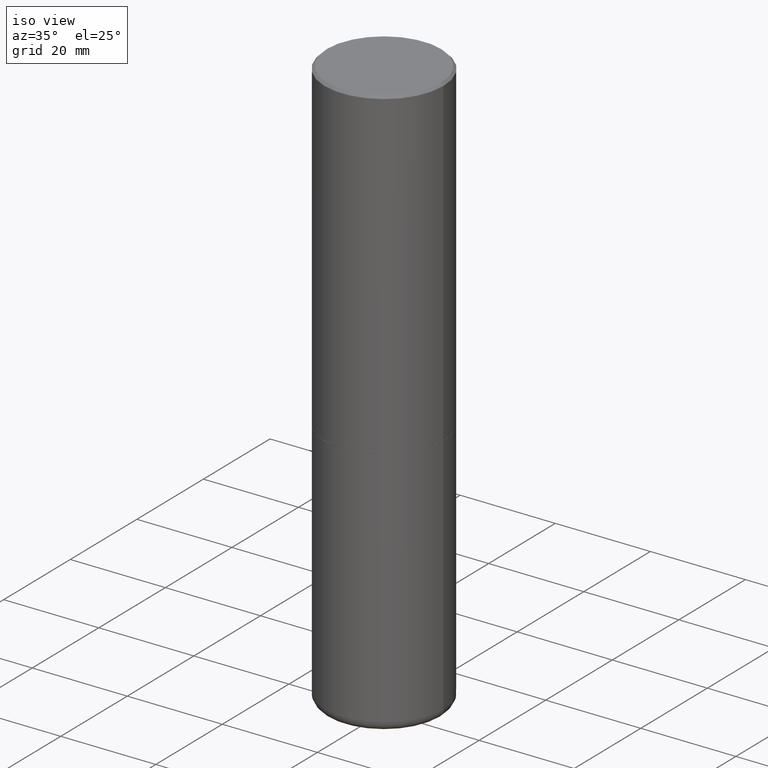
[diagram: clean part render]
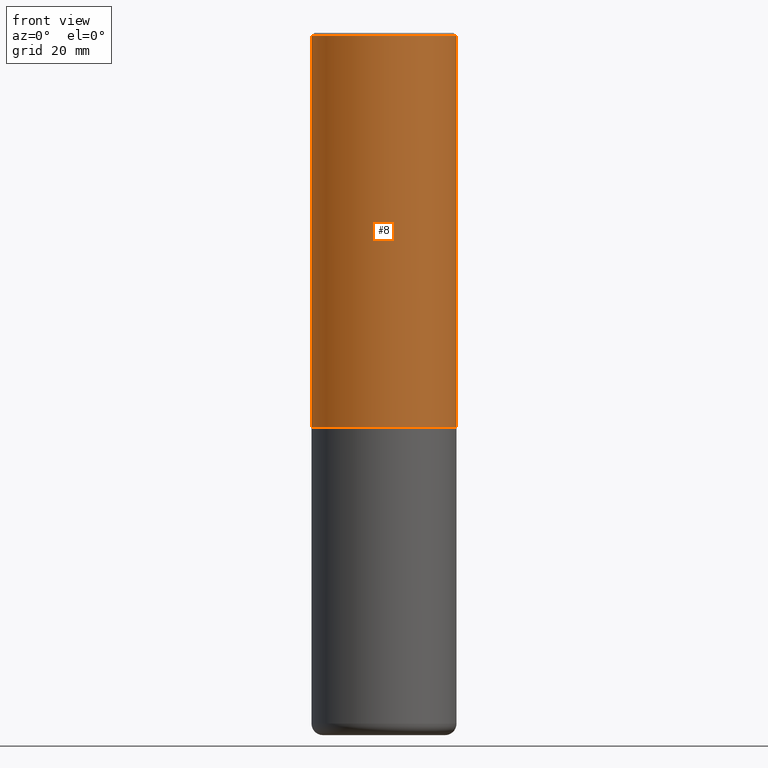
[diagram: tour spotlight — one face highlighted and labeled with its STEP entity id]
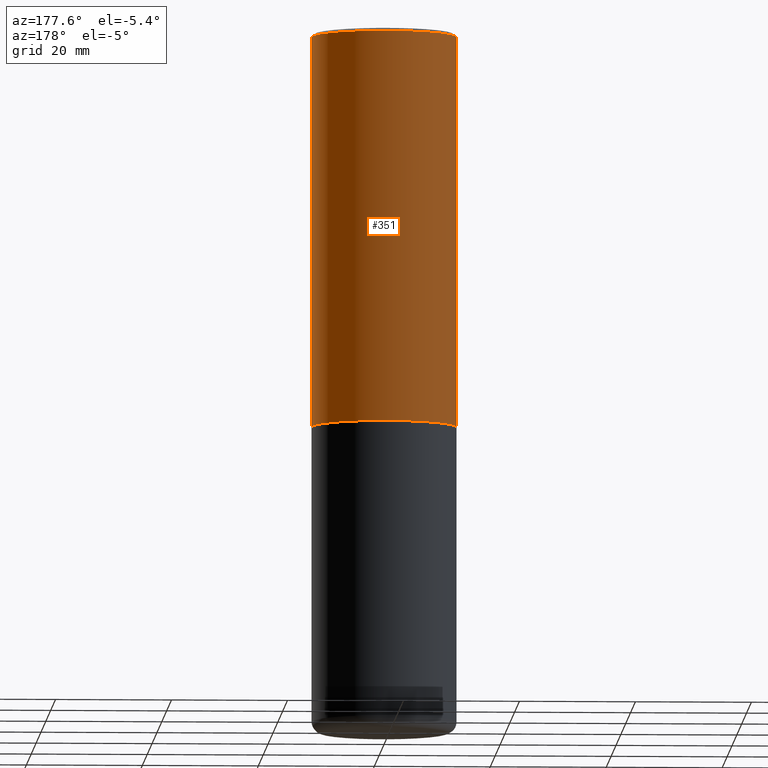
[diagram: tour spotlight — one face highlighted and labeled with its STEP entity id]
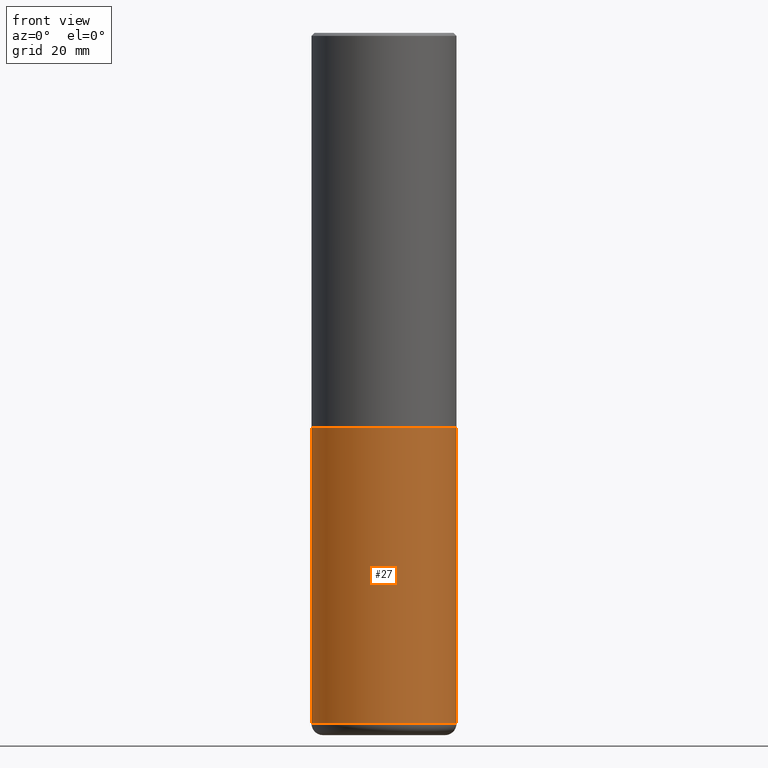
[diagram: tour spotlight — one face highlighted and labeled with its STEP entity id]
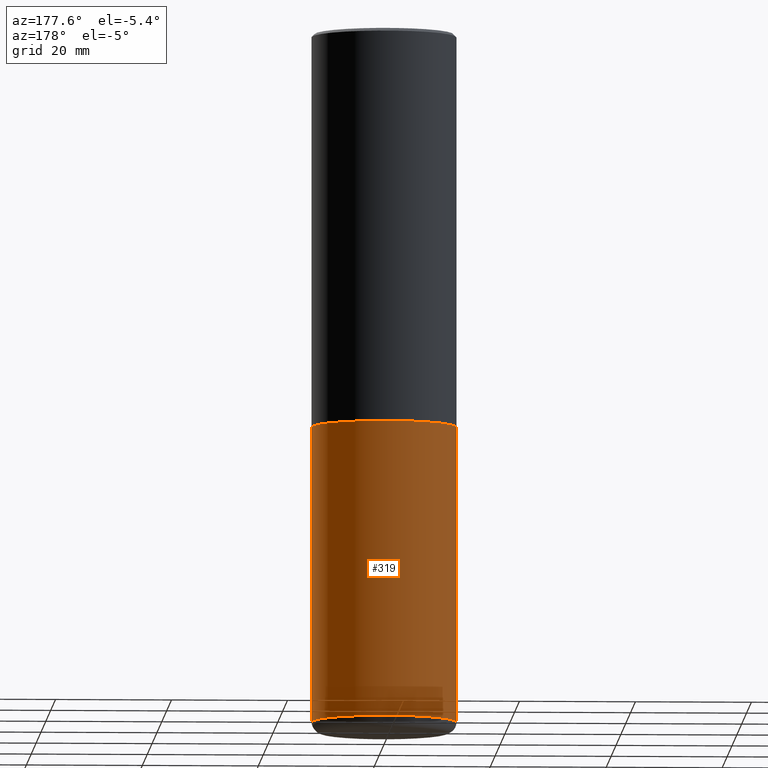
[diagram: tour spotlight — one face highlighted and labeled with its STEP entity id]
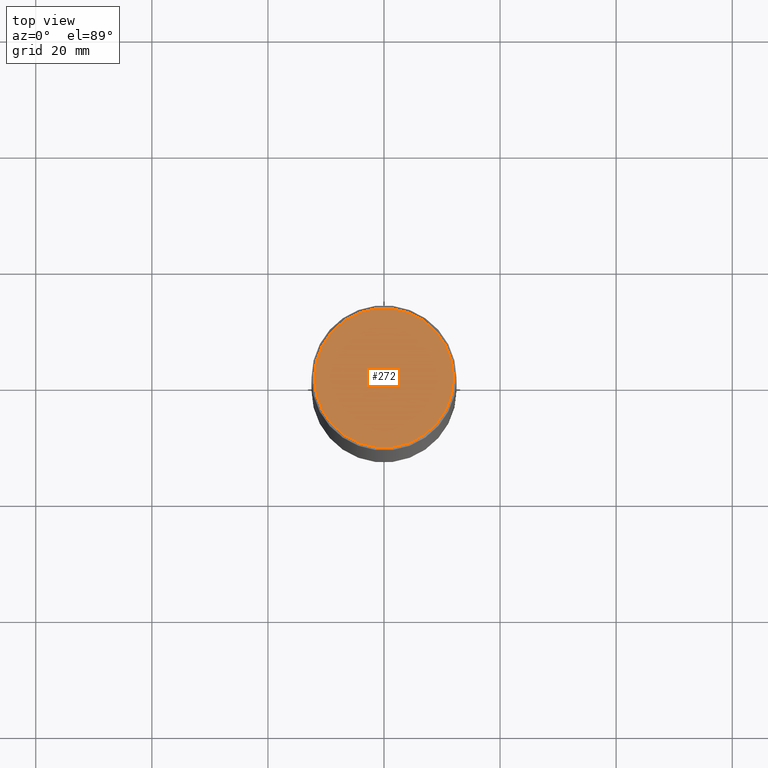
[diagram: tour spotlight — one face highlighted and labeled with its STEP entity id]
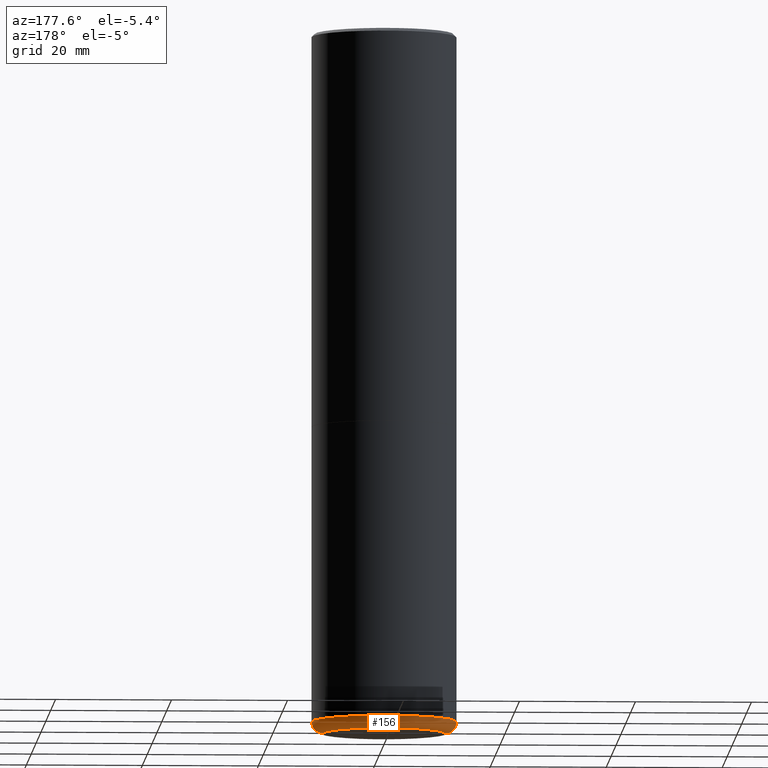
[diagram: tour spotlight — one face highlighted and labeled with its STEP entity id]
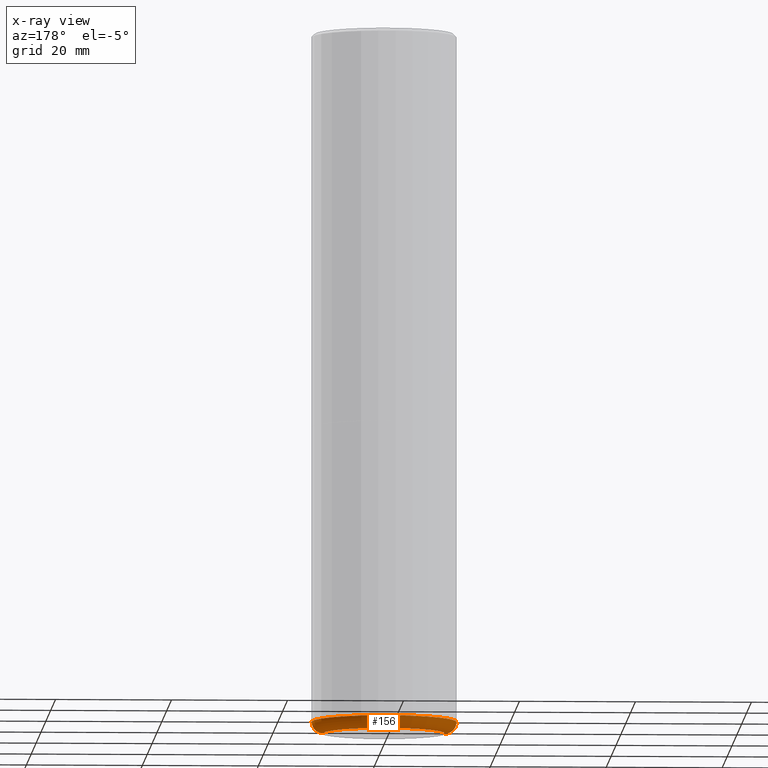
[diagram: x-ray of the same camera — body ghosted, this tour face saturated]
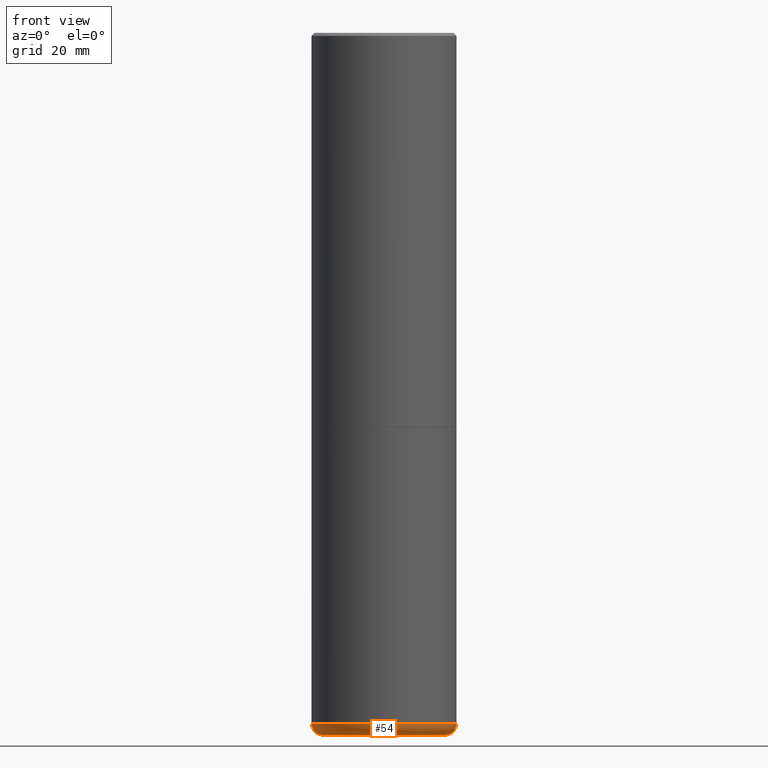
[diagram: tour spotlight — one face highlighted and labeled with its STEP entity id]
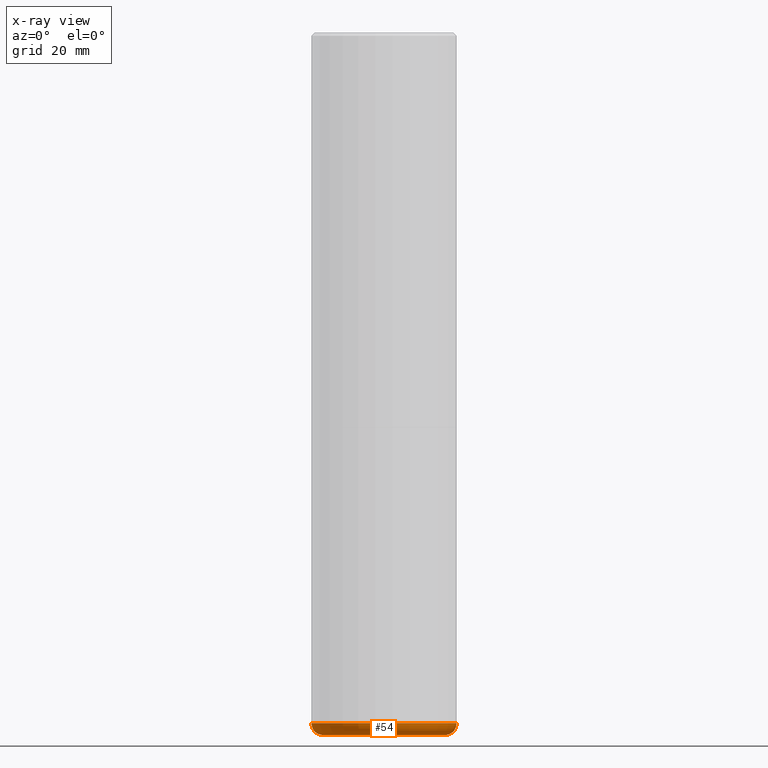
[diagram: x-ray of the same camera — body ghosted, this tour face saturated]
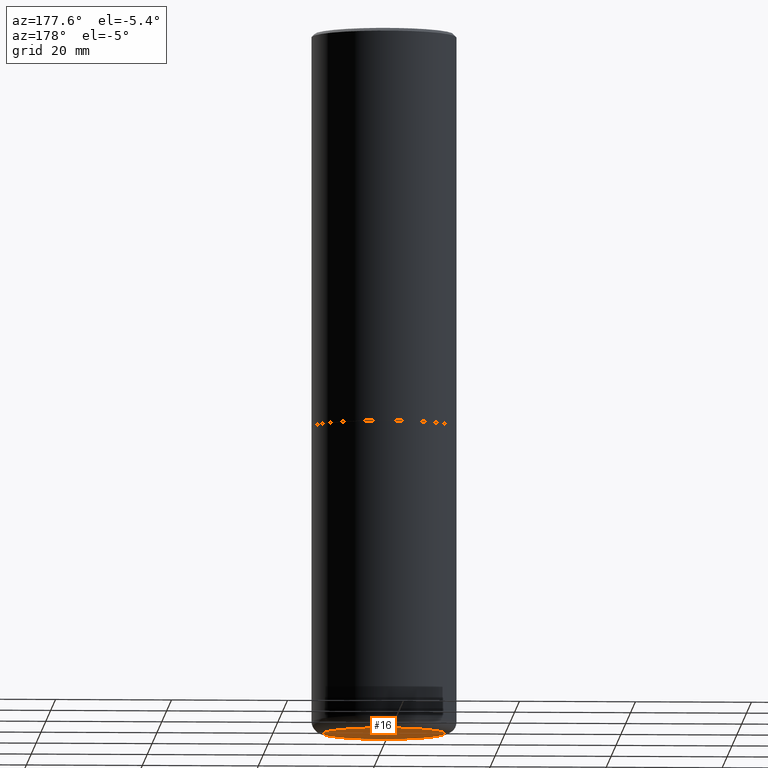
[diagram: tour spotlight — one face highlighted and labeled with its STEP entity id]
A machine part: a face-by-face anatomy tour. The part has 14 B-rep faces; the first image is the clean iso view, then the 8 largest visible faces are spotlighted one at a time (largest first), each with its STEP entity span.

Face 1 — front view, entity #8. In plain terms, the highlighted cylindrical surface (partial cylindrical patch) has radius 12.5006 mm, axis along (-0, 0, 1).
Definition (entity closure, byte-faithful):
#8 = ADVANCED_FACE ( 'NONE', ( #85 ), #271, .T. ) ;
#17 = CIRCLE ( 'NONE', #191, 0.4921499999999999764 ) ;
#40 = CARTESIAN_POINT ( 'NONE',  ( 0.4921500000000000874, -3.436665081823296565E-15, 2.399810400207970163E-29 ) ) ;
#41 = ORIENTED_EDGE ( 'NONE', *, *, #299, .T. ) ;
#72 = DIRECTION ( 'NONE',  ( 1.000000000000000000, -6.982962677686265922E-15, 0.000000000000000000 ) ) ;
#78 = DIRECTION ( 'NONE',  ( -2.445468806185136877E-29, 3.491481338843145188E-15, 1.000000000000000000 ) ) ;
#84 = VECTOR ( 'NONE', #134, 39.37007874015748143 ) ;
#85 = FACE_OUTER_BOUND ( 'NONE', #295, .T. ) ;
#103 = VERTEX_POINT ( 'NONE', #159 ) ;
#112 = AXIS2_PLACEMENT_3D ( 'NONE', #279, #416, #247 ) ;
#127 = DIRECTION ( 'NONE',  ( -2.445468806185136597E-29, 3.491481338843145583E-15, 1.000000000000000000 ) ) ;
#129 = CARTESIAN_POINT ( 'NONE',  ( 4.890937612370299433E-31, -6.982962677686328587E-17, -0.02000000000000010797 ) ) ;
#134 = DIRECTION ( 'NONE',  ( -2.445468806185136877E-29, 3.491481338843145188E-15, 1.000000000000000000 ) ) ;
#139 = CARTESIAN_POINT ( 'NONE',  ( 0.4921499999999999764, -3.446223716380122349E-15, -0.02000000000000010797 ) ) ;
#142 = VERTEX_POINT ( 'NONE', #285 ) ;
#145 = ORIENTED_EDGE ( 'NONE', *, *, #346, .T. ) ;
#157 = VECTOR ( 'NONE', #78, 39.37007874015748143 ) ;
#159 = CARTESIAN_POINT ( 'NONE',  ( -0.4921500000000003094, -1.209929918851106266E-15, -2.676199999999999690 ) ) ;
#191 = AXIS2_PLACEMENT_3D ( 'NONE', #129, #127, #226 ) ;
#200 = ORIENTED_EDGE ( 'NONE', *, *, #265, .F. ) ;
#205 = CIRCLE ( 'NONE', #317, 0.4921500000000003094 ) ;
#226 = DIRECTION ( 'NONE',  ( 1.000000000000000000, -6.982962677686265922E-15, 0.000000000000000000 ) ) ;
#247 = DIRECTION ( 'NONE',  ( 1.000000000000000000, -6.982962677686265922E-15, 4.876176775795935793E-29 ) ) ;
#264 = CARTESIAN_POINT ( 'NONE',  ( -0.4921499999999999764, 3.366835455046432478E-15, -0.02000000000000010797 ) ) ;
#265 = EDGE_CURVE ( 'NONE', #328, #366, #17, .T. ) ;
#266 = DIRECTION ( 'NONE',  ( -2.445468806185136597E-29, 3.491481338843145583E-15, 1.000000000000000000 ) ) ;
#271 = CYLINDRICAL_SURFACE ( 'NONE', #112, 0.4921500000000000874 ) ;
#279 = CARTESIAN_POINT ( 'NONE',  ( 0.000000000000000000, 0.000000000000000000, 0.000000000000000000 ) ) ;
#285 = CARTESIAN_POINT ( 'NONE',  ( 0.4921500000000003094, -1.278056744083532224E-14, -2.676199999999999690 ) ) ;
#291 = LINE ( 'NONE', #293, #84 ) ;
#293 = CARTESIAN_POINT ( 'NONE',  ( -0.4921500000000000874, 3.496936074043333686E-15, -2.420853904668952350E-29 ) ) ;
#295 = EDGE_LOOP ( 'NONE', ( #368, #41, #145, #200 ) ) ;
#299 = EDGE_CURVE ( 'NONE', #103, #142, #205, .T. ) ;
#317 = AXIS2_PLACEMENT_3D ( 'NONE', #398, #266, #72 ) ;
#328 = VERTEX_POINT ( 'NONE', #264 ) ;
#346 = EDGE_CURVE ( 'NONE', #142, #366, #373, .T. ) ;
#355 = EDGE_CURVE ( 'NONE', #103, #328, #291, .T. ) ;
#366 = VERTEX_POINT ( 'NONE', #139 ) ;
#368 = ORIENTED_EDGE ( 'NONE', *, *, #355, .F. ) ;
#373 = LINE ( 'NONE', #40, #157 ) ;
#398 = CARTESIAN_POINT ( 'NONE',  ( 6.544563619112662223E-29, -9.343902359012024888E-15, -2.676199999999999690 ) ) ;
#416 = DIRECTION ( 'NONE',  ( -2.445468806185136597E-29, 3.491481338843145583E-15, 1.000000000000000000 ) ) ;

Face 2 — auxiliary view, entity #351. In plain terms, the highlighted cylindrical surface (partial cylindrical patch) has radius 12.5006 mm, axis along (-0, 0, 1).
Definition (entity closure, byte-faithful):
#40 = CARTESIAN_POINT ( 'NONE',  ( 0.4921500000000000874, -3.436665081823296565E-15, 2.399810400207970163E-29 ) ) ;
#49 = CARTESIAN_POINT ( 'NONE',  ( 0.000000000000000000, 0.000000000000000000, 0.000000000000000000 ) ) ;
#52 = DIRECTION ( 'NONE',  ( -2.445468806185136597E-29, 3.491481338843145583E-15, 1.000000000000000000 ) ) ;
#58 = EDGE_CURVE ( 'NONE', #366, #328, #237, .T. ) ;
#77 = ORIENTED_EDGE ( 'NONE', *, *, #58, .F. ) ;
#78 = DIRECTION ( 'NONE',  ( -2.445468806185136877E-29, 3.491481338843145188E-15, 1.000000000000000000 ) ) ;
#84 = VECTOR ( 'NONE', #134, 39.37007874015748143 ) ;
#99 = AXIS2_PLACEMENT_3D ( 'NONE', #109, #52, #336 ) ;
#103 = VERTEX_POINT ( 'NONE', #159 ) ;
#109 = CARTESIAN_POINT ( 'NONE',  ( 6.544563619112662223E-29, -9.343902359012024888E-15, -2.676199999999999690 ) ) ;
#134 = DIRECTION ( 'NONE',  ( -2.445468806185136877E-29, 3.491481338843145188E-15, 1.000000000000000000 ) ) ;
#135 = ORIENTED_EDGE ( 'NONE', *, *, #396, .T. ) ;
#139 = CARTESIAN_POINT ( 'NONE',  ( 0.4921499999999999764, -3.446223716380122349E-15, -0.02000000000000010797 ) ) ;
#142 = VERTEX_POINT ( 'NONE', #285 ) ;
#149 = CARTESIAN_POINT ( 'NONE',  ( 4.890937612370299433E-31, -6.982962677686328587E-17, -0.02000000000000010797 ) ) ;
#157 = VECTOR ( 'NONE', #78, 39.37007874015748143 ) ;
#159 = CARTESIAN_POINT ( 'NONE',  ( -0.4921500000000003094, -1.209929918851106266E-15, -2.676199999999999690 ) ) ;
#165 = DIRECTION ( 'NONE',  ( 1.000000000000000000, -6.982962677686265922E-15, 4.876176775795935793E-29 ) ) ;
#180 = DIRECTION ( 'NONE',  ( 1.000000000000000000, -6.982962677686265922E-15, 0.000000000000000000 ) ) ;
#185 = CIRCLE ( 'NONE', #99, 0.4921500000000003094 ) ;
#202 = DIRECTION ( 'NONE',  ( -2.445468806185136597E-29, 3.491481338843145583E-15, 1.000000000000000000 ) ) ;
#237 = CIRCLE ( 'NONE', #378, 0.4921499999999999764 ) ;
#264 = CARTESIAN_POINT ( 'NONE',  ( -0.4921499999999999764, 3.366835455046432478E-15, -0.02000000000000010797 ) ) ;
#285 = CARTESIAN_POINT ( 'NONE',  ( 0.4921500000000003094, -1.278056744083532224E-14, -2.676199999999999690 ) ) ;
#291 = LINE ( 'NONE', #293, #84 ) ;
#293 = CARTESIAN_POINT ( 'NONE',  ( -0.4921500000000000874, 3.496936074043333686E-15, -2.420853904668952350E-29 ) ) ;
#328 = VERTEX_POINT ( 'NONE', #264 ) ;
#329 = CYLINDRICAL_SURFACE ( 'NONE', #406, 0.4921500000000000874 ) ;
#333 = FACE_OUTER_BOUND ( 'NONE', #347, .T. ) ;
#336 = DIRECTION ( 'NONE',  ( 1.000000000000000000, -6.982962677686265922E-15, 0.000000000000000000 ) ) ;
#337 = ORIENTED_EDGE ( 'NONE', *, *, #355, .T. ) ;
#344 = DIRECTION ( 'NONE',  ( -2.445468806185136597E-29, 3.491481338843145583E-15, 1.000000000000000000 ) ) ;
#346 = EDGE_CURVE ( 'NONE', #142, #366, #373, .T. ) ;
#347 = EDGE_LOOP ( 'NONE', ( #135, #337, #77, #382 ) ) ;
#351 = ADVANCED_FACE ( 'NONE', ( #333 ), #329, .T. ) ;
#355 = EDGE_CURVE ( 'NONE', #103, #328, #291, .T. ) ;
#366 = VERTEX_POINT ( 'NONE', #139 ) ;
#373 = LINE ( 'NONE', #40, #157 ) ;
#378 = AXIS2_PLACEMENT_3D ( 'NONE', #149, #344, #180 ) ;
#382 = ORIENTED_EDGE ( 'NONE', *, *, #346, .F. ) ;
#396 = EDGE_CURVE ( 'NONE', #142, #103, #185, .T. ) ;
#406 = AXIS2_PLACEMENT_3D ( 'NONE', #49, #202, #165 ) ;

Face 3 — front view, entity #27. In plain terms, the highlighted cylindrical surface (partial cylindrical patch) has radius 12.5006 mm, axis along (-0, 0, 1).
Definition (entity closure, byte-faithful):
#6 = CARTESIAN_POINT ( 'NONE',  ( -0.4921499999999999764, -9.355730456439111248E-15, -2.677199999999999580 ) ) ;
#15 = CARTESIAN_POINT ( 'NONE',  ( 0.4921499999999999764, -1.278405892217416209E-14, -2.677199999999999580 ) ) ;
#20 = EDGE_LOOP ( 'NONE', ( #171, #82, #399, #50 ) ) ;
#26 = CARTESIAN_POINT ( 'NONE',  ( 6.547009087918846705E-29, -9.347393840350866318E-15, -2.677199999999999580 ) ) ;
#27 = ADVANCED_FACE ( 'NONE', ( #65 ), #216, .T. ) ;
#31 = DIRECTION ( 'NONE',  ( -2.445468806185136877E-29, 3.491481338843145188E-15, 1.000000000000000000 ) ) ;
#36 = EDGE_CURVE ( 'NONE', #298, #201, #383, .T. ) ;
#39 = CIRCLE ( 'NONE', #136, 0.4921499999999999764 ) ;
#50 = ORIENTED_EDGE ( 'NONE', *, *, #81, .F. ) ;
#56 = AXIS2_PLACEMENT_3D ( 'NONE', #62, #273, #410 ) ;
#62 = CARTESIAN_POINT ( 'NONE',  ( 0.000000000000000000, 0.000000000000000000, 0.000000000000000000 ) ) ;
#65 = FACE_OUTER_BOUND ( 'NONE', #20, .T. ) ;
#71 = DIRECTION ( 'NONE',  ( -2.445468806185136877E-29, 3.491481338843145188E-15, 1.000000000000000000 ) ) ;
#81 = EDGE_CURVE ( 'NONE', #201, #408, #39, .T. ) ;
#82 = ORIENTED_EDGE ( 'NONE', *, *, #390, .T. ) ;
#131 = CARTESIAN_POINT ( 'NONE',  ( 0.4921499999999999764, -1.979460430243731302E-14, -4.685099999999999376 ) ) ;
#136 = AXIS2_PLACEMENT_3D ( 'NONE', #26, #245, #320 ) ;
#138 = AXIS2_PLACEMENT_3D ( 'NONE', #260, #401, #261 ) ;
#153 = LINE ( 'NONE', #256, #225 ) ;
#169 = EDGE_CURVE ( 'NONE', #208, #408, #153, .T. ) ;
#171 = ORIENTED_EDGE ( 'NONE', *, *, #36, .F. ) ;
#186 = CARTESIAN_POINT ( 'NONE',  ( -0.4921499999999999764, 3.496936074043332897E-15, -2.420853904668951509E-29 ) ) ;
#199 = CIRCLE ( 'NONE', #138, 0.4921499999999999764 ) ;
#201 = VERTEX_POINT ( 'NONE', #6 ) ;
#208 = VERTEX_POINT ( 'NONE', #131 ) ;
#216 = CYLINDRICAL_SURFACE ( 'NONE', #56, 0.4921499999999999764 ) ;
#225 = VECTOR ( 'NONE', #71, 39.37007874015748143 ) ;
#245 = DIRECTION ( 'NONE',  ( -2.445468806185136597E-29, 3.491481338843145583E-15, 1.000000000000000000 ) ) ;
#256 = CARTESIAN_POINT ( 'NONE',  ( 0.4921499999999999764, -3.436665081823295777E-15, 2.399810400207969603E-29 ) ) ;
#260 = CARTESIAN_POINT ( 'NONE',  ( 1.145726590385798145E-28, -1.635793922061402197E-14, -4.685099999999999376 ) ) ;
#261 = DIRECTION ( 'NONE',  ( 1.000000000000000000, -6.982962677686265922E-15, 0.000000000000000000 ) ) ;
#273 = DIRECTION ( 'NONE',  ( -2.445468806185136597E-29, 3.491481338843145583E-15, 1.000000000000000000 ) ) ;
#298 = VERTEX_POINT ( 'NONE', #367 ) ;
#320 = DIRECTION ( 'NONE',  ( 1.000000000000000000, -6.982962677686265922E-15, 0.000000000000000000 ) ) ;
#367 = CARTESIAN_POINT ( 'NONE',  ( -0.4921499999999999764, -1.286100314657068829E-14, -4.685099999999999376 ) ) ;
#372 = VECTOR ( 'NONE', #31, 39.37007874015748143 ) ;
#383 = LINE ( 'NONE', #186, #372 ) ;
#390 = EDGE_CURVE ( 'NONE', #298, #208, #199, .T. ) ;
#399 = ORIENTED_EDGE ( 'NONE', *, *, #169, .T. ) ;
#401 = DIRECTION ( 'NONE',  ( -2.445468806185136597E-29, 3.491481338843145583E-15, 1.000000000000000000 ) ) ;
#408 = VERTEX_POINT ( 'NONE', #15 ) ;
#410 = DIRECTION ( 'NONE',  ( 1.000000000000000000, -6.982962677686265922E-15, 4.876176775795935793E-29 ) ) ;

Face 4 — auxiliary view, entity #319. In plain terms, the highlighted cylindrical surface (partial cylindrical patch) has radius 12.5006 mm, axis along (-0, 0, 1).
Definition (entity closure, byte-faithful):
#6 = CARTESIAN_POINT ( 'NONE',  ( -0.4921499999999999764, -9.355730456439111248E-15, -2.677199999999999580 ) ) ;
#10 = AXIS2_PLACEMENT_3D ( 'NONE', #403, #369, #173 ) ;
#14 = ORIENTED_EDGE ( 'NONE', *, *, #42, .F. ) ;
#15 = CARTESIAN_POINT ( 'NONE',  ( 0.4921499999999999764, -1.278405892217416209E-14, -2.677199999999999580 ) ) ;
#31 = DIRECTION ( 'NONE',  ( -2.445468806185136877E-29, 3.491481338843145188E-15, 1.000000000000000000 ) ) ;
#36 = EDGE_CURVE ( 'NONE', #298, #201, #383, .T. ) ;
#42 = EDGE_CURVE ( 'NONE', #408, #201, #47, .T. ) ;
#43 = DIRECTION ( 'NONE',  ( -2.445468806185136597E-29, 3.491481338843145583E-15, 1.000000000000000000 ) ) ;
#45 = CARTESIAN_POINT ( 'NONE',  ( 0.000000000000000000, 0.000000000000000000, 0.000000000000000000 ) ) ;
#47 = CIRCLE ( 'NONE', #219, 0.4921499999999999764 ) ;
#71 = DIRECTION ( 'NONE',  ( -2.445468806185136877E-29, 3.491481338843145188E-15, 1.000000000000000000 ) ) ;
#88 = EDGE_LOOP ( 'NONE', ( #338, #234, #14, #371 ) ) ;
#131 = CARTESIAN_POINT ( 'NONE',  ( 0.4921499999999999764, -1.979460430243731302E-14, -4.685099999999999376 ) ) ;
#151 = DIRECTION ( 'NONE',  ( -2.445468806185136597E-29, 3.491481338843145583E-15, 1.000000000000000000 ) ) ;
#153 = LINE ( 'NONE', #256, #225 ) ;
#169 = EDGE_CURVE ( 'NONE', #208, #408, #153, .T. ) ;
#173 = DIRECTION ( 'NONE',  ( 1.000000000000000000, -6.982962677686265922E-15, 0.000000000000000000 ) ) ;
#186 = CARTESIAN_POINT ( 'NONE',  ( -0.4921499999999999764, 3.496936074043332897E-15, -2.420853904668951509E-29 ) ) ;
#201 = VERTEX_POINT ( 'NONE', #6 ) ;
#208 = VERTEX_POINT ( 'NONE', #131 ) ;
#219 = AXIS2_PLACEMENT_3D ( 'NONE', #418, #151, #379 ) ;
#225 = VECTOR ( 'NONE', #71, 39.37007874015748143 ) ;
#233 = CYLINDRICAL_SURFACE ( 'NONE', #312, 0.4921499999999999764 ) ;
#234 = ORIENTED_EDGE ( 'NONE', *, *, #36, .T. ) ;
#256 = CARTESIAN_POINT ( 'NONE',  ( 0.4921499999999999764, -3.436665081823295777E-15, 2.399810400207969603E-29 ) ) ;
#298 = VERTEX_POINT ( 'NONE', #367 ) ;
#300 = FACE_OUTER_BOUND ( 'NONE', #88, .T. ) ;
#312 = AXIS2_PLACEMENT_3D ( 'NONE', #45, #43, #362 ) ;
#319 = ADVANCED_FACE ( 'NONE', ( #300 ), #233, .T. ) ;
#338 = ORIENTED_EDGE ( 'NONE', *, *, #361, .T. ) ;
#358 = CIRCLE ( 'NONE', #10, 0.4921499999999999764 ) ;
#361 = EDGE_CURVE ( 'NONE', #208, #298, #358, .T. ) ;
#362 = DIRECTION ( 'NONE',  ( 1.000000000000000000, -6.982962677686265922E-15, 4.876176775795935793E-29 ) ) ;
#367 = CARTESIAN_POINT ( 'NONE',  ( -0.4921499999999999764, -1.286100314657068829E-14, -4.685099999999999376 ) ) ;
#369 = DIRECTION ( 'NONE',  ( -2.445468806185136597E-29, 3.491481338843145583E-15, 1.000000000000000000 ) ) ;
#371 = ORIENTED_EDGE ( 'NONE', *, *, #169, .F. ) ;
#372 = VECTOR ( 'NONE', #31, 39.37007874015748143 ) ;
#379 = DIRECTION ( 'NONE',  ( 1.000000000000000000, -6.982962677686265922E-15, 0.000000000000000000 ) ) ;
#383 = LINE ( 'NONE', #186, #372 ) ;
#403 = CARTESIAN_POINT ( 'NONE',  ( 1.145726590385798145E-28, -1.635793922061402197E-14, -4.685099999999999376 ) ) ;
#408 = VERTEX_POINT ( 'NONE', #15 ) ;
#418 = CARTESIAN_POINT ( 'NONE',  ( 6.547009087918846705E-29, -9.347393840350866318E-15, -2.677199999999999580 ) ) ;

Face 5 — top view, entity #272. In plain terms, the highlighted planar face has unit normal (0, -0, -1).
Definition (entity closure, byte-faithful):
#9 = AXIS2_PLACEMENT_3D ( 'NONE', #167, #198, #79 ) ;
#19 = VERTEX_POINT ( 'NONE', #305 ) ;
#33 = AXIS2_PLACEMENT_3D ( 'NONE', #389, #70, #353 ) ;
#64 = CIRCLE ( 'NONE', #357, 0.4721499999999996255 ) ;
#70 = DIRECTION ( 'NONE',  ( 2.438088387897960049E-29, -3.491481338843145188E-15, -1.000000000000000000 ) ) ;
#79 = DIRECTION ( 'NONE',  ( 1.000000000000000000, -6.982962677686265922E-15, 4.882029041999365698E-29 ) ) ;
#133 = CARTESIAN_POINT ( 'NONE',  ( -0.4721499999999996255, 3.331920641658000829E-15, 2.774533118565036250E-16 ) ) ;
#141 = ORIENTED_EDGE ( 'NONE', *, *, #326, .T. ) ;
#167 = CARTESIAN_POINT ( 'NONE',  ( -6.785034193178930130E-45, 9.687230607472910058E-31, 2.774533118565267978E-16 ) ) ;
#170 = CIRCLE ( 'NONE', #9, 0.4721499999999996255 ) ;
#190 = DIRECTION ( 'NONE',  ( -2.445468806185136597E-29, 3.491481338843145583E-15, 1.000000000000000000 ) ) ;
#198 = DIRECTION ( 'NONE',  ( -2.445468806185136597E-29, 3.491481338843145583E-15, 1.000000000000000000 ) ) ;
#210 = ORIENTED_EDGE ( 'NONE', *, *, #215, .T. ) ;
#215 = EDGE_CURVE ( 'NONE', #19, #239, #64, .T. ) ;
#224 = DIRECTION ( 'NONE',  ( 1.000000000000000000, -6.982962677686265922E-15, 4.882029041999365698E-29 ) ) ;
#239 = VERTEX_POINT ( 'NONE', #133 ) ;
#272 = ADVANCED_FACE ( 'NONE', ( #359 ), #356, .F. ) ;
#305 = CARTESIAN_POINT ( 'NONE',  ( 0.4721499999999996255, -3.342703923013973791E-15, 2.774533118565500199E-16 ) ) ;
#314 = EDGE_LOOP ( 'NONE', ( #141, #210 ) ) ;
#326 = EDGE_CURVE ( 'NONE', #239, #19, #170, .T. ) ;
#353 = DIRECTION ( 'NONE',  ( -1.000000000000000000, 6.982962677686265922E-15, -4.876176775795935793E-29 ) ) ;
#356 = PLANE ( 'NONE',  #33 ) ;
#357 = AXIS2_PLACEMENT_3D ( 'NONE', #397, #190, #224 ) ;
#359 = FACE_OUTER_BOUND ( 'NONE', #314, .T. ) ;
#389 = CARTESIAN_POINT ( 'NONE',  ( 3.297005828269567997E-15, 0.4721499999999996255, -1.509776258206526442E-15 ) ) ;
#397 = CARTESIAN_POINT ( 'NONE',  ( -6.785034193178930130E-45, 9.687230607472910058E-31, 2.774533118565267978E-16 ) ) ;

Face 6 — auxiliary view, entity #156. An x-ray twin of the same camera follows (body ghosted, this face saturated) — the face is partly hidden behind the body. In plain terms, the highlighted toroidal blend (fillet) surface has major radius 10.5016 mm and minor (blend) radius 1.999 mm.
Definition (entity closure, byte-faithful):
#2 = EDGE_CURVE ( 'NONE', #334, #208, #263, .T. ) ;
#10 = AXIS2_PLACEMENT_3D ( 'NONE', #403, #369, #173 ) ;
#12 = DIRECTION ( 'NONE',  ( 7.105427357601001859E-15, 1.000000000000000000, -3.491481338843145583E-15 ) ) ;
#35 = FACE_OUTER_BOUND ( 'NONE', #174, .T. ) ;
#38 = CARTESIAN_POINT ( 'NONE',  ( -0.4134499999999999287, -1.342020027961388708E-14, -4.685099999999999376 ) ) ;
#55 = ORIENTED_EDGE ( 'NONE', *, *, #232, .T. ) ;
#95 = DIRECTION ( 'NONE',  ( -2.445468806185136597E-29, 3.491481338843145583E-15, 1.000000000000000000 ) ) ;
#98 = DIRECTION ( 'NONE',  ( -2.445468806185136597E-29, 3.491481338843145583E-15, 1.000000000000000000 ) ) ;
#107 = CARTESIAN_POINT ( 'NONE',  ( 0.4134499999999999287, -1.951982472107036283E-14, -4.763799999999999812 ) ) ;
#120 = DIRECTION ( 'NONE',  ( -6.982962677686266711E-15, -1.000000000000000000, 3.491481338843145583E-15 ) ) ;
#125 = AXIS2_PLACEMENT_3D ( 'NONE', #38, #12, #193 ) ;
#131 = CARTESIAN_POINT ( 'NONE',  ( 0.4921499999999999764, -1.979460430243731302E-14, -4.685099999999999376 ) ) ;
#143 = CIRCLE ( 'NONE', #125, 0.07869999999999996443 ) ;
#156 = ADVANCED_FACE ( 'NONE', ( #35 ), #257, .T. ) ;
#173 = DIRECTION ( 'NONE',  ( 1.000000000000000000, -6.982962677686265922E-15, 0.000000000000000000 ) ) ;
#174 = EDGE_LOOP ( 'NONE', ( #301, #55, #374, #276 ) ) ;
#193 = DIRECTION ( 'NONE',  ( -1.000000000000000000, 7.105427357600995548E-15, 0.000000000000000000 ) ) ;
#203 = VERTEX_POINT ( 'NONE', #290 ) ;
#208 = VERTEX_POINT ( 'NONE', #131 ) ;
#223 = CARTESIAN_POINT ( 'NONE',  ( 1.164972429890475298E-28, -1.663271880198097531E-14, -4.763799999999999812 ) ) ;
#232 = EDGE_CURVE ( 'NONE', #203, #298, #143, .T. ) ;
#235 = EDGE_CURVE ( 'NONE', #334, #203, #386, .T. ) ;
#249 = DIRECTION ( 'NONE',  ( 1.000000000000000000, -6.982962677686247778E-15, 0.000000000000000000 ) ) ;
#257 = TOROIDAL_SURFACE ( 'NONE', #323, 0.4134499999999999287, 0.07869999999999996443 ) ;
#263 = CIRCLE ( 'NONE', #405, 0.07869999999999996443 ) ;
#276 = ORIENTED_EDGE ( 'NONE', *, *, #2, .F. ) ;
#290 = CARTESIAN_POINT ( 'NONE',  ( -0.4134499999999999287, -1.327799150377576435E-14, -4.763799999999999812 ) ) ;
#298 = VERTEX_POINT ( 'NONE', #367 ) ;
#301 = ORIENTED_EDGE ( 'NONE', *, *, #235, .T. ) ;
#315 = CARTESIAN_POINT ( 'NONE',  ( 1.145726590385798145E-28, -1.635793922061402197E-14, -4.685099999999999376 ) ) ;
#316 = DIRECTION ( 'NONE',  ( 1.000000000000000000, -6.982962677686266711E-15, 0.000000000000000000 ) ) ;
#323 = AXIS2_PLACEMENT_3D ( 'NONE', #315, #95, #360 ) ;
#334 = VERTEX_POINT ( 'NONE', #107 ) ;
#341 = AXIS2_PLACEMENT_3D ( 'NONE', #223, #98, #316 ) ;
#349 = CARTESIAN_POINT ( 'NONE',  ( 0.4134499999999999287, -1.924504513970340634E-14, -4.685099999999999376 ) ) ;
#358 = CIRCLE ( 'NONE', #10, 0.4921499999999999764 ) ;
#360 = DIRECTION ( 'NONE',  ( 1.000000000000000000, -6.982962677686267499E-15, 4.883557194083112340E-29 ) ) ;
#361 = EDGE_CURVE ( 'NONE', #208, #298, #358, .T. ) ;
#367 = CARTESIAN_POINT ( 'NONE',  ( -0.4921499999999999764, -1.286100314657068829E-14, -4.685099999999999376 ) ) ;
#369 = DIRECTION ( 'NONE',  ( -2.445468806185136597E-29, 3.491481338843145583E-15, 1.000000000000000000 ) ) ;
#374 = ORIENTED_EDGE ( 'NONE', *, *, #361, .F. ) ;
#386 = CIRCLE ( 'NONE', #341, 0.4134499999999999287 ) ;
#403 = CARTESIAN_POINT ( 'NONE',  ( 1.145726590385798145E-28, -1.635793922061402197E-14, -4.685099999999999376 ) ) ;
#405 = AXIS2_PLACEMENT_3D ( 'NONE', #349, #120, #249 ) ;

Face 7 — front view, entity #54. An x-ray twin of the same camera follows (body ghosted, this face saturated) — the face is partly hidden behind the body. In plain terms, the highlighted toroidal blend (fillet) surface has major radius 10.5016 mm and minor (blend) radius 1.999 mm.
Definition (entity closure, byte-faithful):
#2 = EDGE_CURVE ( 'NONE', #334, #208, #263, .T. ) ;
#12 = DIRECTION ( 'NONE',  ( 7.105427357601001859E-15, 1.000000000000000000, -3.491481338843145583E-15 ) ) ;
#23 = DIRECTION ( 'NONE',  ( -2.445468806185136597E-29, 3.491481338843145583E-15, 1.000000000000000000 ) ) ;
#29 = CARTESIAN_POINT ( 'NONE',  ( 1.164972429890475298E-28, -1.663271880198097531E-14, -4.763799999999999812 ) ) ;
#38 = CARTESIAN_POINT ( 'NONE',  ( -0.4134499999999999287, -1.342020027961388708E-14, -4.685099999999999376 ) ) ;
#51 = EDGE_CURVE ( 'NONE', #203, #334, #161, .T. ) ;
#54 = ADVANCED_FACE ( 'NONE', ( #211 ), #331, .T. ) ;
#76 = EDGE_LOOP ( 'NONE', ( #206, #168, #137, #375 ) ) ;
#107 = CARTESIAN_POINT ( 'NONE',  ( 0.4134499999999999287, -1.951982472107036283E-14, -4.763799999999999812 ) ) ;
#120 = DIRECTION ( 'NONE',  ( -6.982962677686266711E-15, -1.000000000000000000, 3.491481338843145583E-15 ) ) ;
#125 = AXIS2_PLACEMENT_3D ( 'NONE', #38, #12, #193 ) ;
#131 = CARTESIAN_POINT ( 'NONE',  ( 0.4921499999999999764, -1.979460430243731302E-14, -4.685099999999999376 ) ) ;
#137 = ORIENTED_EDGE ( 'NONE', *, *, #2, .T. ) ;
#138 = AXIS2_PLACEMENT_3D ( 'NONE', #260, #401, #261 ) ;
#143 = CIRCLE ( 'NONE', #125, 0.07869999999999996443 ) ;
#146 = DIRECTION ( 'NONE',  ( -2.445468806185136597E-29, 3.491481338843145583E-15, 1.000000000000000000 ) ) ;
#161 = CIRCLE ( 'NONE', #304, 0.4134499999999999287 ) ;
#168 = ORIENTED_EDGE ( 'NONE', *, *, #51, .T. ) ;
#193 = DIRECTION ( 'NONE',  ( -1.000000000000000000, 7.105427357600995548E-15, 0.000000000000000000 ) ) ;
#199 = CIRCLE ( 'NONE', #138, 0.4921499999999999764 ) ;
#203 = VERTEX_POINT ( 'NONE', #290 ) ;
#206 = ORIENTED_EDGE ( 'NONE', *, *, #232, .F. ) ;
#208 = VERTEX_POINT ( 'NONE', #131 ) ;
#211 = FACE_OUTER_BOUND ( 'NONE', #76, .T. ) ;
#213 = DIRECTION ( 'NONE',  ( 1.000000000000000000, -6.982962677686267499E-15, 4.883557194083112340E-29 ) ) ;
#232 = EDGE_CURVE ( 'NONE', #203, #298, #143, .T. ) ;
#249 = DIRECTION ( 'NONE',  ( 1.000000000000000000, -6.982962677686247778E-15, 0.000000000000000000 ) ) ;
#260 = CARTESIAN_POINT ( 'NONE',  ( 1.145726590385798145E-28, -1.635793922061402197E-14, -4.685099999999999376 ) ) ;
#261 = DIRECTION ( 'NONE',  ( 1.000000000000000000, -6.982962677686265922E-15, 0.000000000000000000 ) ) ;
#263 = CIRCLE ( 'NONE', #405, 0.07869999999999996443 ) ;
#290 = CARTESIAN_POINT ( 'NONE',  ( -0.4134499999999999287, -1.327799150377576435E-14, -4.763799999999999812 ) ) ;
#298 = VERTEX_POINT ( 'NONE', #367 ) ;
#304 = AXIS2_PLACEMENT_3D ( 'NONE', #29, #23, #414 ) ;
#331 = TOROIDAL_SURFACE ( 'NONE', #412, 0.4134499999999999287, 0.07869999999999996443 ) ;
#334 = VERTEX_POINT ( 'NONE', #107 ) ;
#343 = CARTESIAN_POINT ( 'NONE',  ( 1.145726590385798145E-28, -1.635793922061402197E-14, -4.685099999999999376 ) ) ;
#349 = CARTESIAN_POINT ( 'NONE',  ( 0.4134499999999999287, -1.924504513970340634E-14, -4.685099999999999376 ) ) ;
#367 = CARTESIAN_POINT ( 'NONE',  ( -0.4921499999999999764, -1.286100314657068829E-14, -4.685099999999999376 ) ) ;
#375 = ORIENTED_EDGE ( 'NONE', *, *, #390, .F. ) ;
#390 = EDGE_CURVE ( 'NONE', #298, #208, #199, .T. ) ;
#401 = DIRECTION ( 'NONE',  ( -2.445468806185136597E-29, 3.491481338843145583E-15, 1.000000000000000000 ) ) ;
#405 = AXIS2_PLACEMENT_3D ( 'NONE', #349, #120, #249 ) ;
#412 = AXIS2_PLACEMENT_3D ( 'NONE', #343, #146, #213 ) ;
#414 = DIRECTION ( 'NONE',  ( 1.000000000000000000, -6.982962677686266711E-15, 0.000000000000000000 ) ) ;

Face 8 — auxiliary view, entity #16. In plain terms, the highlighted planar face has unit normal (0, -0, -1).
Definition (entity closure, byte-faithful):
#16 = ADVANCED_FACE ( 'NONE', ( #177 ), #114, .T. ) ;
#23 = DIRECTION ( 'NONE',  ( -2.445468806185136597E-29, 3.491481338843145583E-15, 1.000000000000000000 ) ) ;
#24 = CARTESIAN_POINT ( 'NONE',  ( 1.164972429890475298E-28, -1.663271880198097531E-14, -4.763799999999999812 ) ) ;
#29 = CARTESIAN_POINT ( 'NONE',  ( 1.164972429890475298E-28, -1.663271880198097531E-14, -4.763799999999999812 ) ) ;
#51 = EDGE_CURVE ( 'NONE', #203, #334, #161, .T. ) ;
#53 = ORIENTED_EDGE ( 'NONE', *, *, #235, .F. ) ;
#98 = DIRECTION ( 'NONE',  ( -2.445468806185136597E-29, 3.491481338843145583E-15, 1.000000000000000000 ) ) ;
#107 = CARTESIAN_POINT ( 'NONE',  ( 0.4134499999999999287, -1.951982472107036283E-14, -4.763799999999999812 ) ) ;
#113 = EDGE_LOOP ( 'NONE', ( #53, #144 ) ) ;
#114 = PLANE ( 'NONE',  #350 ) ;
#144 = ORIENTED_EDGE ( 'NONE', *, *, #51, .F. ) ;
#161 = CIRCLE ( 'NONE', #304, 0.4134499999999999287 ) ;
#177 = FACE_OUTER_BOUND ( 'NONE', #113, .T. ) ;
#203 = VERTEX_POINT ( 'NONE', #290 ) ;
#223 = CARTESIAN_POINT ( 'NONE',  ( 1.164972429890475298E-28, -1.663271880198097531E-14, -4.763799999999999812 ) ) ;
#235 = EDGE_CURVE ( 'NONE', #334, #203, #386, .T. ) ;
#240 = DIRECTION ( 'NONE',  ( 2.438088387897960049E-29, -3.491481338843145188E-15, -1.000000000000000000 ) ) ;
#290 = CARTESIAN_POINT ( 'NONE',  ( -0.4134499999999999287, -1.327799150377576435E-14, -4.763799999999999812 ) ) ;
#304 = AXIS2_PLACEMENT_3D ( 'NONE', #29, #23, #414 ) ;
#316 = DIRECTION ( 'NONE',  ( 1.000000000000000000, -6.982962677686266711E-15, 0.000000000000000000 ) ) ;
#334 = VERTEX_POINT ( 'NONE', #107 ) ;
#341 = AXIS2_PLACEMENT_3D ( 'NONE', #223, #98, #316 ) ;
#350 = AXIS2_PLACEMENT_3D ( 'NONE', #24, #240, #409 ) ;
#386 = CIRCLE ( 'NONE', #341, 0.4134499999999999287 ) ;
#409 = DIRECTION ( 'NONE',  ( -1.000000000000000000, 6.982962677686265922E-15, -4.876176775795935793E-29 ) ) ;
#414 = DIRECTION ( 'NONE',  ( 1.000000000000000000, -6.982962677686266711E-15, 0.000000000000000000 ) ) ;